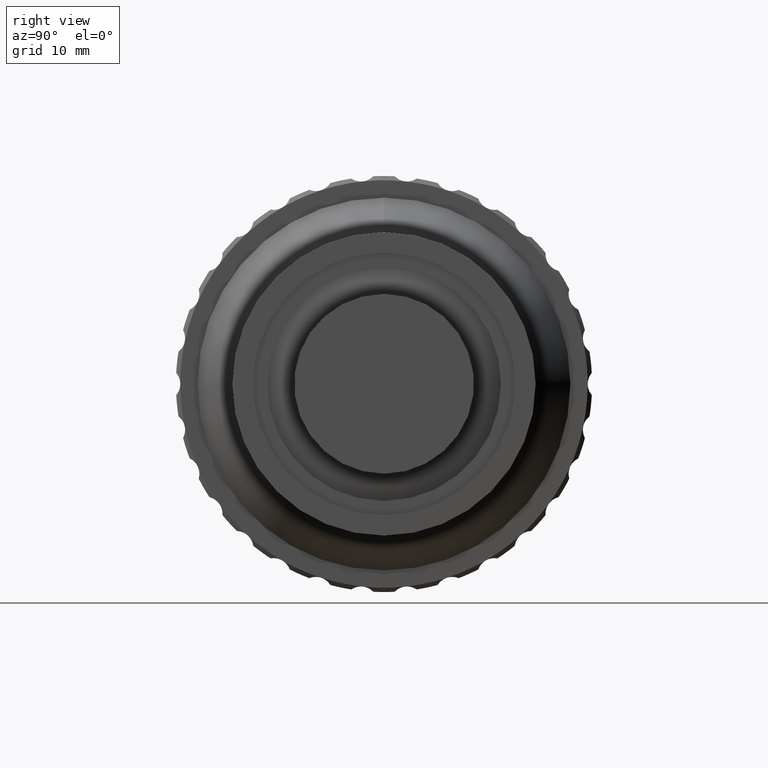
[diagram: clean part render]
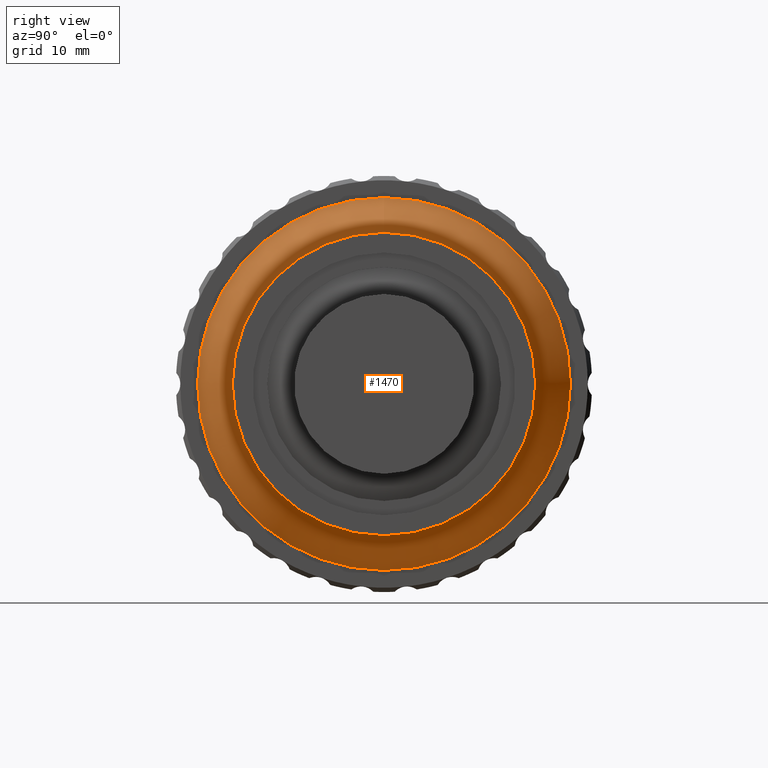
[diagram: same view with one face highlighted and labeled with its STEP entity id]
A machine part, right view. The second image highlights one B-rep face of the part: STEP entity #1470.
In plain terms, the highlighted conical surface has half-angle 29.092 deg.
Its self-contained STEP definition (entity closure, byte-faithful):
#48 = DIRECTION ( 'NONE',  ( 0.000000000000000000, 0.000000000000000000, -1.000000000000000000 ) ) ;
#380 = DIRECTION ( 'NONE',  ( 0.000000000000000000, 0.000000000000000000, 1.000000000000000000 ) ) ;
#402 = DIRECTION ( 'NONE',  ( 0.000000000000000000, 0.000000000000000000, 1.000000000000000000 ) ) ;
#595 = EDGE_LOOP ( 'NONE', ( #4228 ) ) ;
#767 = CARTESIAN_POINT ( 'NONE',  ( 14.14115099999999714, 0.000000000000000000, 0.000000000000000000 ) ) ;
#932 = CIRCLE ( 'NONE', #4761, 17.49999999999999645 ) ;
#1151 = CARTESIAN_POINT ( 'NONE',  ( 14.14115099999999714, 0.000000000000000000, 0.000000000000000000 ) ) ;
#1243 = VERTEX_POINT ( 'NONE', #1587 ) ;
#1376 = EDGE_CURVE ( 'NONE', #1243, #1243, #2833, .T. ) ;
#1470 = ADVANCED_FACE ( 'NONE', ( #1495, #2625 ), #3647, .T. ) ;
#1495 = FACE_BOUND ( 'NONE', #2456, .T. ) ;
#1531 = AXIS2_PLACEMENT_3D ( 'NONE', #767, #4138, #402 ) ;
#1587 = CARTESIAN_POINT ( 'NONE',  ( 14.14115099999999714, 0.000000000000000000, 21.50000000000000000 ) ) ;
#1868 = ORIENTED_EDGE ( 'NONE', *, *, #2126, .F. ) ;
#2126 = EDGE_CURVE ( 'NONE', #3839, #3839, #932, .T. ) ;
#2456 = EDGE_LOOP ( 'NONE', ( #1868 ) ) ;
#2608 = AXIS2_PLACEMENT_3D ( 'NONE', #1151, #3796, #380 ) ;
#2625 = FACE_OUTER_BOUND ( 'NONE', #595, .T. ) ;
#2766 = CARTESIAN_POINT ( 'NONE',  ( 21.33008000000000948, 0.000000000000000000, -17.49999999999999645 ) ) ;
#2833 = CIRCLE ( 'NONE', #2608, 21.50000000000000000 ) ;
#3647 = CONICAL_SURFACE ( 'NONE', #1531, 21.50000000000000000, 0.5077520434264742866 ) ;
#3678 = DIRECTION ( 'NONE',  ( 1.000000000000000000, 0.000000000000000000, 0.000000000000000000 ) ) ;
#3796 = DIRECTION ( 'NONE',  ( 1.000000000000000000, -0.000000000000000000, -0.000000000000000000 ) ) ;
#3839 = VERTEX_POINT ( 'NONE', #2766 ) ;
#4138 = DIRECTION ( 'NONE',  ( -1.000000000000000000, 0.000000000000000000, 0.000000000000000000 ) ) ;
#4228 = ORIENTED_EDGE ( 'NONE', *, *, #1376, .T. ) ;
#4485 = CARTESIAN_POINT ( 'NONE',  ( 21.33008000000000948, 0.000000000000000000, 0.000000000000000000 ) ) ;
#4761 = AXIS2_PLACEMENT_3D ( 'NONE', #4485, #3678, #48 ) ;